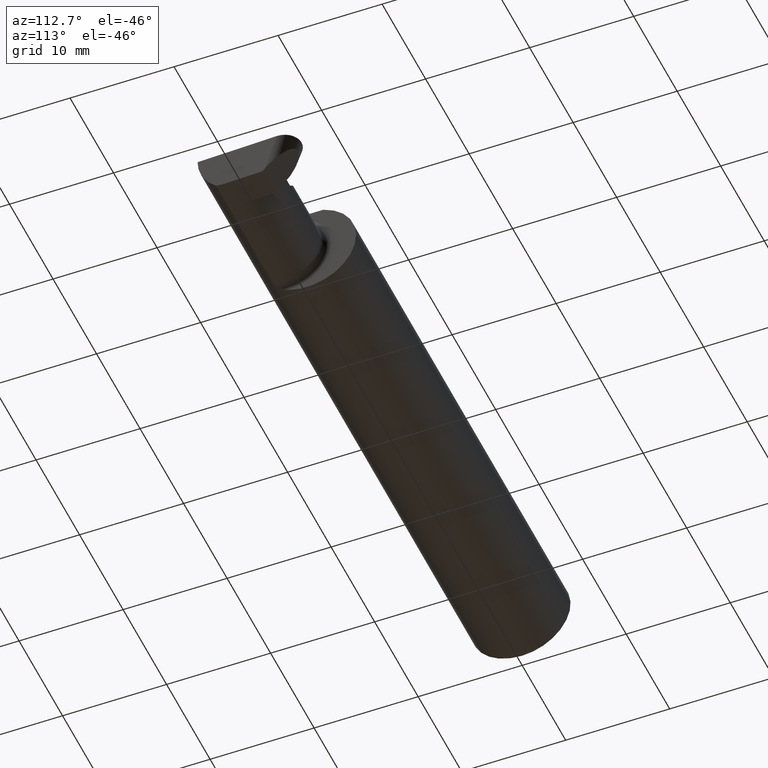
[diagram: clean part render]
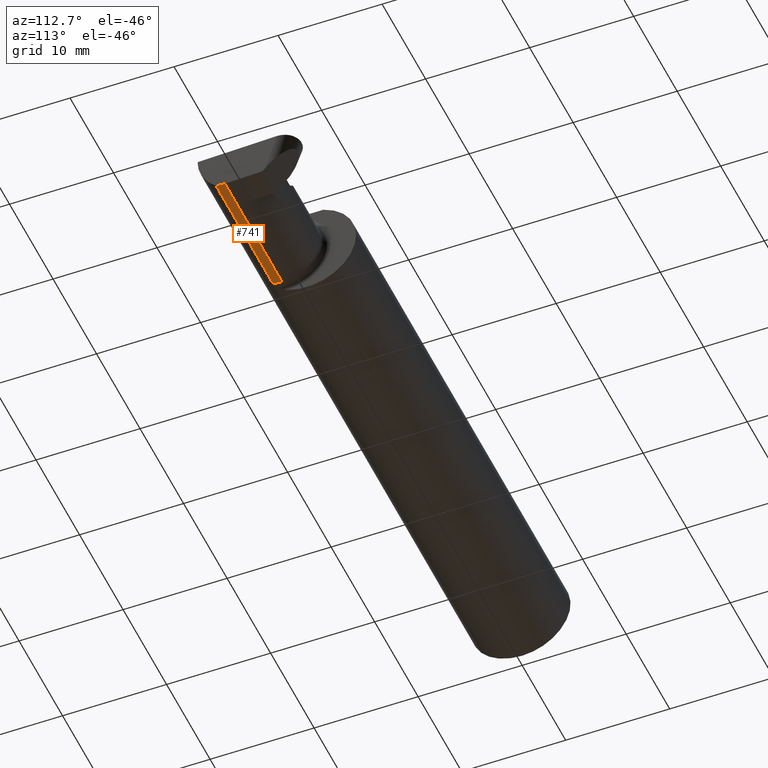
[diagram: same view with one face highlighted and labeled with its STEP entity id]
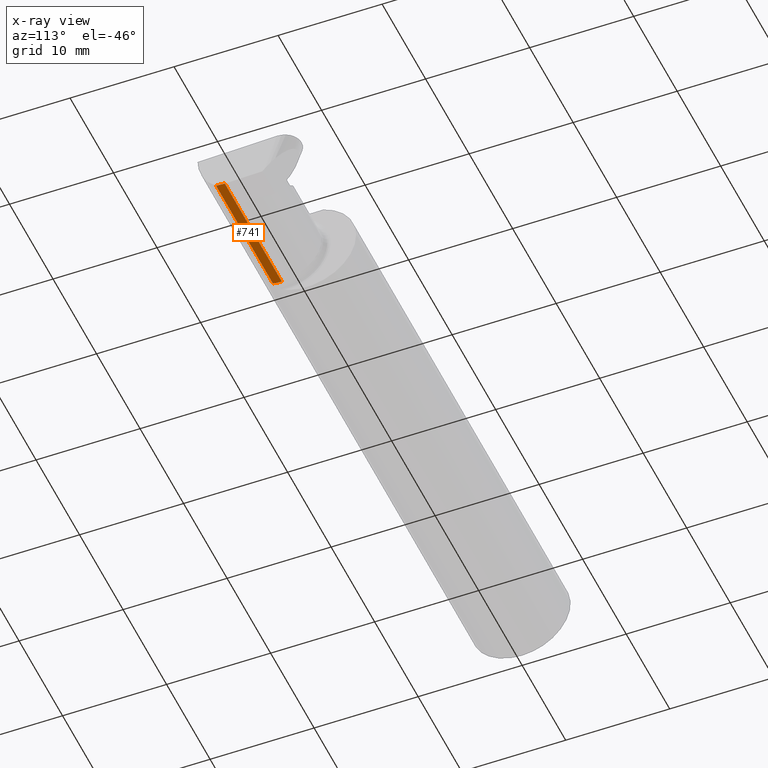
[diagram: x-ray of the same camera — body ghosted, the highlighted face saturated]
A machine part, auxiliary view. The second image highlights one B-rep face of the part: STEP entity #741.
The next image is the same camera in x-ray: the body ghosted, the highlighted face saturated — about 0% of this face is hidden behind the body in this view.
In plain terms, the highlighted cylindrical surface (partial cylindrical patch) has radius 3.81 mm, axis along (-1, -0, -0).
Its self-contained STEP definition (entity closure, byte-faithful):
#8 = VERTEX_POINT ( 'NONE', #556 ) ;
#15 = CARTESIAN_POINT ( 'NONE',  ( 1.974999999999999867, -0.08334999999999999354, 0.000000000000000000 ) ) ;
#40 = VECTOR ( 'NONE', #551, 39.37007874015748143 ) ;
#82 = EDGE_CURVE ( 'NONE', #212, #8, #577, .T. ) ;
#137 = EDGE_LOOP ( 'NONE', ( #301, #604, #496, #330, #737 ) ) ;
#144 = EDGE_CURVE ( 'NONE', #314, #212, #557, .T. ) ;
#154 = CARTESIAN_POINT ( 'NONE',  ( 1.974999999999999867, -0.1172600179964006090, -0.1461167706989303927 ) ) ;
#163 = CYLINDRICAL_SURFACE ( 'NONE', #592, 0.1500000000000000500 ) ;
#168 = CARTESIAN_POINT ( 'NONE',  ( 1.949999999999999956, -0.08334999999999999354, 0.000000000000000000 ) ) ;
#212 = VERTEX_POINT ( 'NONE', #591 ) ;
#225 = VECTOR ( 'NONE', #720, 39.37007874015748143 ) ;
#301 = ORIENTED_EDGE ( 'NONE', *, *, #338, .F. ) ;
#314 = VERTEX_POINT ( 'NONE', #616 ) ;
#330 = ORIENTED_EDGE ( 'NONE', *, *, #438, .T. ) ;
#338 = EDGE_CURVE ( 'NONE', #8, #388, #415, .T. ) ;
#352 = AXIS2_PLACEMENT_3D ( 'NONE', #15, #655, #703 ) ;
#353 = DIRECTION ( 'NONE',  ( -1.000000000000000000, -0.000000000000000000, -0.000000000000000000 ) ) ;
#388 = VERTEX_POINT ( 'NONE', #726 ) ;
#395 = CIRCLE ( 'NONE', #352, 0.1500000000000000500 ) ;
#411 = LINE ( 'NONE', #662, #40 ) ;
#415 = LINE ( 'NONE', #546, #225 ) ;
#438 = EDGE_CURVE ( 'NONE', #314, #718, #411, .T. ) ;
#456 = CARTESIAN_POINT ( 'NONE',  ( 2.489474166416076883, -0.1061291577212410131, -0.1486999626928446339 ) ) ;
#467 = VECTOR ( 'NONE', #623, 39.37007874015748143 ) ;
#491 = FACE_OUTER_BOUND ( 'NONE', #137, .T. ) ;
#496 = ORIENTED_EDGE ( 'NONE', *, *, #144, .F. ) ;
#517 = CARTESIAN_POINT ( 'NONE',  ( 2.489130585478359858, -0.1172600179964006090, -0.1461167706989303927 ) ) ;
#546 = CARTESIAN_POINT ( 'NONE',  ( 1.949999999999999956, -0.08334999999999997966, -0.1500000000000000500 ) ) ;
#551 = DIRECTION ( 'NONE',  ( -1.000000000000000000, -0.000000000000000000, -0.000000000000000000 ) ) ;
#556 = CARTESIAN_POINT ( 'NONE',  ( 2.379376865616626535, -0.08334999999999999354, -0.1500000000000000500 ) ) ;
#557 =( BOUNDED_CURVE ( )  B_SPLINE_CURVE ( 3, ( #517, #456, #692, #701 ),
 .UNSPECIFIED., .F., .F. ) 
 B_SPLINE_CURVE_WITH_KNOTS ( ( 4, 4 ),
 ( 0.8789888184544186744, 1.107026853503861874 ),
 .UNSPECIFIED. ) 
 CURVE ( )  GEOMETRIC_REPRESENTATION_ITEM ( )  RATIONAL_B_SPLINE_CURVE ( ( 1.000000000000000000, 0.9956712472009929815, 0.9956712472009929815, 1.000000000000000000 ) ) 
 REPRESENTATION_ITEM ( '' )  );
#577 = LINE ( 'NONE', #625, #467 ) ;
#591 = CARTESIAN_POINT ( 'NONE',  ( 2.490246926064548560, -0.08335000000000014619, -0.1500000000000000500 ) ) ;
#592 = AXIS2_PLACEMENT_3D ( 'NONE', #168, #353, #791 ) ;
#604 = ORIENTED_EDGE ( 'NONE', *, *, #82, .F. ) ;
#616 = CARTESIAN_POINT ( 'NONE',  ( 2.489130585478359858, -0.1172600179964006090, -0.1461167706989303927 ) ) ;
#623 = DIRECTION ( 'NONE',  ( -1.000000000000000000, -0.000000000000000000, -0.000000000000000000 ) ) ;
#625 = CARTESIAN_POINT ( 'NONE',  ( 2.733184360054361939, -0.08335000000000014619, -0.1500000000000000500 ) ) ;
#644 = EDGE_CURVE ( 'NONE', #388, #718, #395, .T. ) ;
#655 = DIRECTION ( 'NONE',  ( -1.000000000000000000, -0.000000000000000000, -0.000000000000000000 ) ) ;
#662 = CARTESIAN_POINT ( 'NONE',  ( 2.174861995000000103, -0.1172600179964006090, -0.1461167706989303927 ) ) ;
#692 = CARTESIAN_POINT ( 'NONE',  ( 2.489847897735300464, -0.09477667630339432769, -0.1499999999999999944 ) ) ;
#701 = CARTESIAN_POINT ( 'NONE',  ( 2.490246926064548560, -0.08335000000000014619, -0.1500000000000000500 ) ) ;
#703 = DIRECTION ( 'NONE',  ( 0.000000000000000000, 0.000000000000000000, 1.000000000000000000 ) ) ;
#718 = VERTEX_POINT ( 'NONE', #154 ) ;
#720 = DIRECTION ( 'NONE',  ( -1.000000000000000000, -0.000000000000000000, -0.000000000000000000 ) ) ;
#726 = CARTESIAN_POINT ( 'NONE',  ( 1.974999999999999867, -0.08334999999999997966, -0.1500000000000000500 ) ) ;
#737 = ORIENTED_EDGE ( 'NONE', *, *, #644, .F. ) ;
#741 = ADVANCED_FACE ( 'NONE', ( #491 ), #163, .T. ) ;
#791 = DIRECTION ( 'NONE',  ( 0.000000000000000000, 0.000000000000000000, 1.000000000000000000 ) ) ;